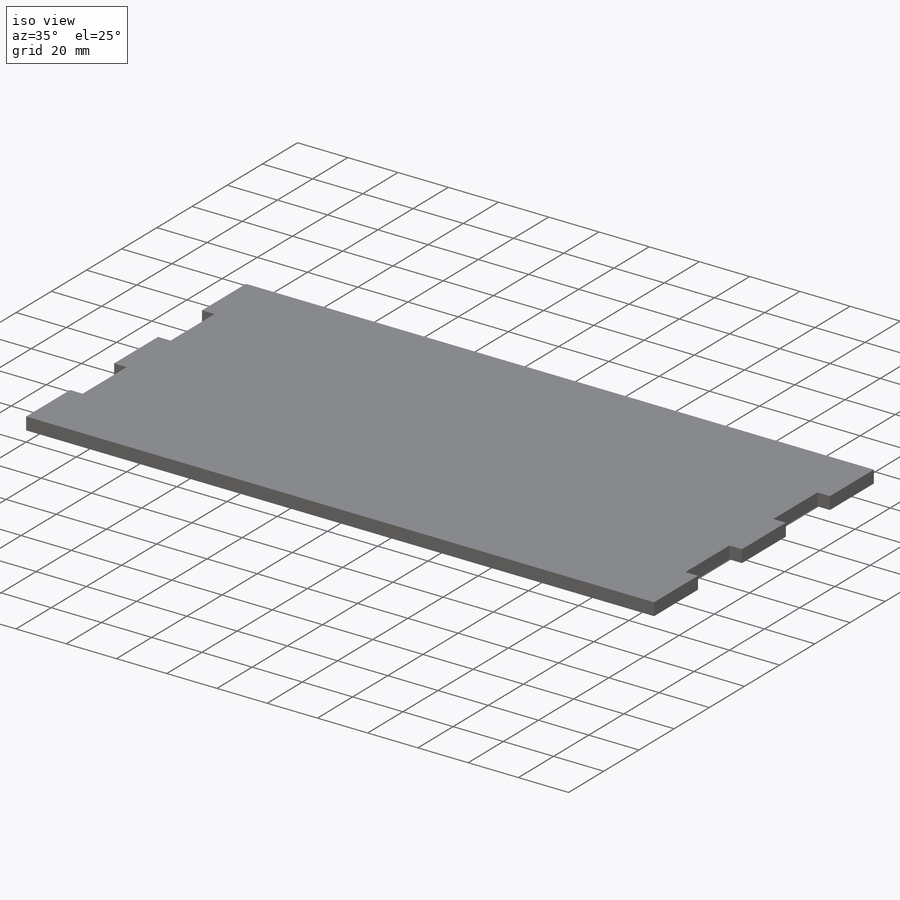
[diagram: iso view]
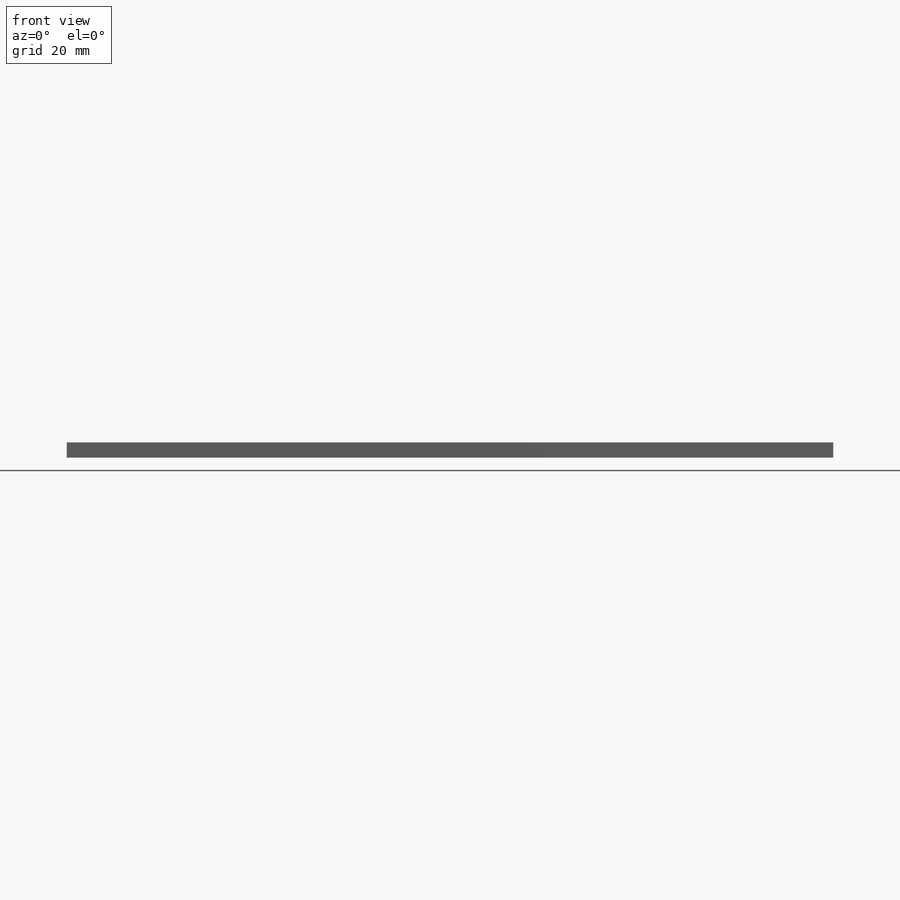
[diagram: front view]
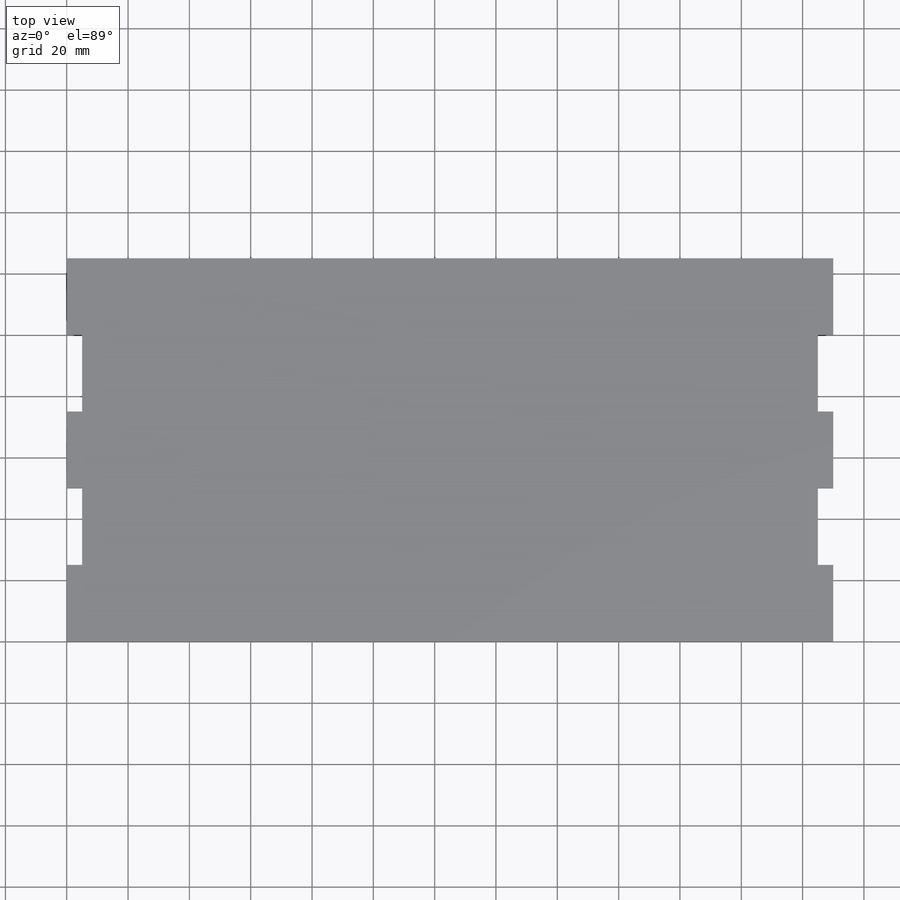
[diagram: top view]
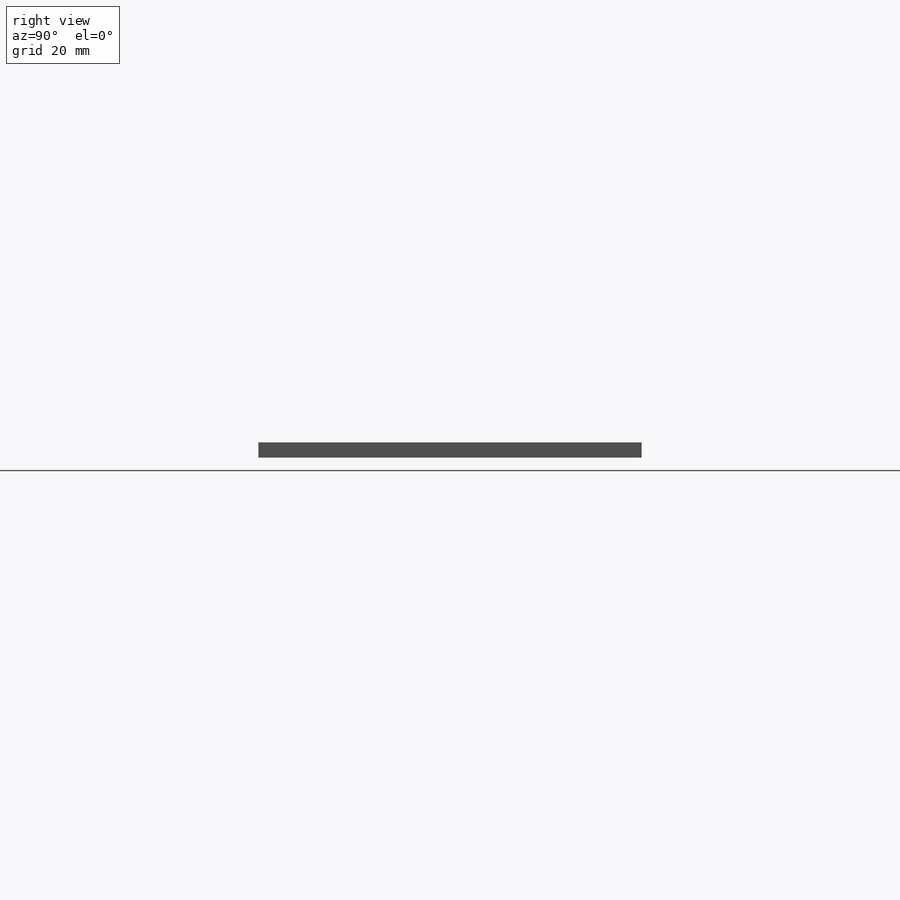
[diagram: right view]
SOLIDWORKS PART (.sldprt)
format: sldprt  version: not decoded by parser v0  size: 177,152 bytes
history: native  units: mm
features: sketch x3, cut_extrude x2, material x1, extrude x1 (+13 scaffold rows collapsed)
feature tree (20):
  scaffold x13  (default folders/planes/origin — collapsed)
  material  "Material <not specified>"
  sketch  "Sketch3"  dims[D1=250.0mm D2=125.0mm]
  extrude  "Boss-Extrude1"  Depth=5mm
  sketch  "Sketch10"  dims[c1.D1=20.0mm c1.D2=25.0mm c1.D3=25.0mm c2.D1=25.0mm c2.D4=25.0mm c2.D5=5.0mm c2.D6=5.0mm c2.D7=5.0mm]
  cut_extrude  "Cut-Extrude4"  [1 undecoded]
  sketch  "Sketch11"  dims[D1=5.0mm D2=10.0mm]
  cut_extrude  "Cut-Extrude5"  Depth=2.5mm
decode coverage: 5 of 6 modeling features carry decoded parameters
note: 1 parameter value undecoded
note: suppression state not decoded; provenance and decode notes live in map.json
